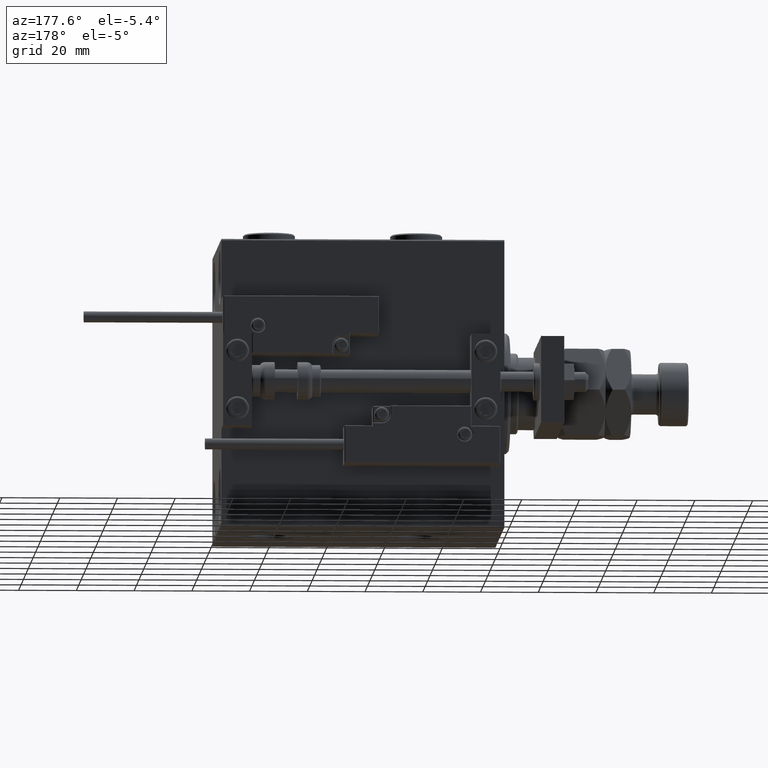
[diagram: clean part render]
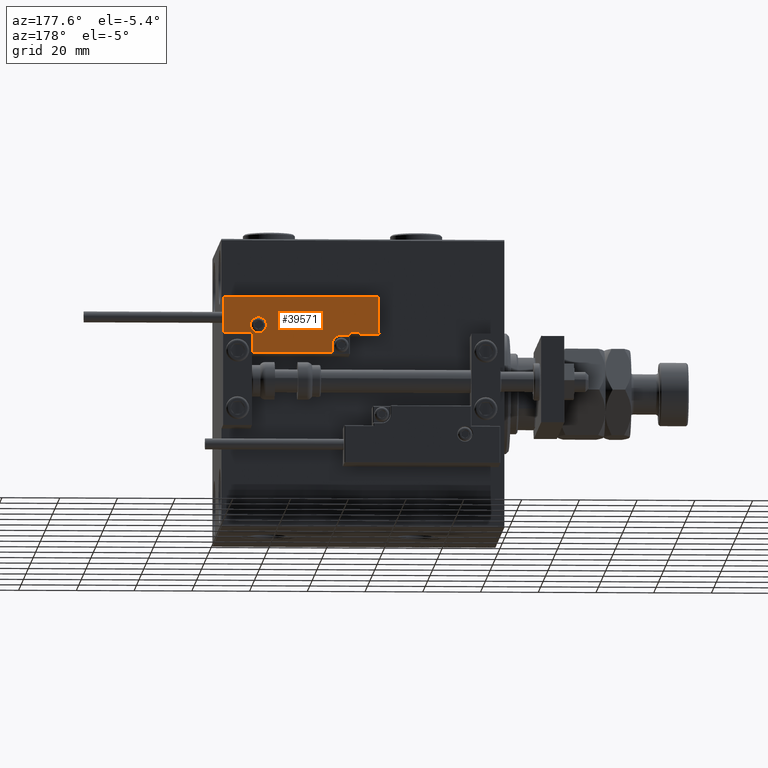
[diagram: same view with one face highlighted and labeled with its STEP entity id]
A machine part, auxiliary view. The second image highlights one B-rep face of the part: STEP entity #39571.
In plain terms, the highlighted planar face has unit normal (0, 1, -0).
Its self-contained STEP definition (entity closure, byte-faithful):
#631 = DIRECTION ( 'NONE',  ( 1.000000000000000000, 0.000000000000000000, 0.000000000000000000 ) ) ;
#680 = CARTESIAN_POINT ( 'NONE',  ( -11.99999999999994849, 9.800000000000004263, 14.00000000000000000 ) ) ;
#1669 = CARTESIAN_POINT ( 'NONE',  ( 10.69999999999999929, 3.000000000000003109, 14.00000000000000000 ) ) ;
#1866 = VERTEX_POINT ( 'NONE', #1669 ) ;
#2740 = CIRCLE ( 'NONE', #7013, 2.800000000000000266 ) ;
#2774 = DIRECTION ( 'NONE',  ( 1.000000000000000000, -1.734723475976815230E-16, 0.000000000000000000 ) ) ;
#2789 = VECTOR ( 'NONE', #10536, 1000.000000000000000 ) ;
#3572 = LINE ( 'NONE', #16253, #50113 ) ;
#4473 = ORIENTED_EDGE ( 'NONE', *, *, #48314, .T. ) ;
#4988 = VECTOR ( 'NONE', #32285, 1000.000000000000000 ) ;
#5203 = CARTESIAN_POINT ( 'NONE',  ( -14.79999999999994920, 9.800000000000004263, 14.00000000000000000 ) ) ;
#5204 = DIRECTION ( 'NONE',  ( 1.000000000000000000, 0.000000000000000000, 0.000000000000000000 ) ) ;
#5682 = DIRECTION ( 'NONE',  ( 0.000000000000000000, -0.000000000000000000, -1.000000000000000000 ) ) ;
#6308 = EDGE_CURVE ( 'NONE', #21961, #34755, #27029, .T. ) ;
#7013 = AXIS2_PLACEMENT_3D ( 'NONE', #25135, #5682, #50712 ) ;
#7266 = CARTESIAN_POINT ( 'NONE',  ( 26.70000000000006324, 19.70000000000001705, 14.00000000000000000 ) ) ;
#8036 = CARTESIAN_POINT ( 'NONE',  ( 16.69999999999999929, 6.300000000000003375, 14.00000000000000000 ) ) ;
#8128 = CIRCLE ( 'NONE', #21932, 3.299999999999997158 ) ;
#8203 = EDGE_CURVE ( 'NONE', #34755, #20968, #47510, .T. ) ;
#8355 = EDGE_CURVE ( 'NONE', #33851, #14526, #2740, .T. ) ;
#9189 = CARTESIAN_POINT ( 'NONE',  ( 11.00000000000000000, 0.3000000000000032085, 14.00000000000000000 ) ) ;
#9788 = VECTOR ( 'NONE', #38728, 1000.000000000000000 ) ;
#10382 = PLANE ( 'NONE',  #49442 ) ;
#10536 = DIRECTION ( 'NONE',  ( 1.000000000000000000, 5.782411586589357639E-16, -0.000000000000000000 ) ) ;
#10803 = CARTESIAN_POINT ( 'NONE',  ( 17.00000000000000000, 6.300000000000003375, 14.00000000000000000 ) ) ;
#10813 = CARTESIAN_POINT ( 'NONE',  ( 26.70000000000006324, 20.00000000000001776, 14.00000000000000000 ) ) ;
#11319 = AXIS2_PLACEMENT_3D ( 'NONE', #5203, #46465, #631 ) ;
#12041 = EDGE_CURVE ( 'NONE', #14526, #33851, #34590, .T. ) ;
#13084 = ORIENTED_EDGE ( 'NONE', *, *, #33061, .T. ) ;
#13241 = LINE ( 'NONE', #9189, #45053 ) ;
#13507 = DIRECTION ( 'NONE',  ( 1.000000000000000000, -0.000000000000000000, 0.000000000000000000 ) ) ;
#14526 = VERTEX_POINT ( 'NONE', #30143 ) ;
#15827 = ORIENTED_EDGE ( 'NONE', *, *, #31158, .T. ) ;
#16253 = CARTESIAN_POINT ( 'NONE',  ( -16.99999999999999289, 7.300000000000003375, 14.00000000000000000 ) ) ;
#17371 = LINE ( 'NONE', #18150, #29903 ) ;
#17390 = CARTESIAN_POINT ( 'NONE',  ( 16.69999999999999929, 7.300000000000009592, 14.00000000000000000 ) ) ;
#17708 = EDGE_CURVE ( 'NONE', #1866, #45497, #8128, .T. ) ;
#18150 = CARTESIAN_POINT ( 'NONE',  ( 10.69999999999999929, 3.000000000000003109, 14.00000000000000000 ) ) ;
#18478 = LINE ( 'NONE', #51376, #9788 ) ;
#18618 = ORIENTED_EDGE ( 'NONE', *, *, #8355, .T. ) ;
#20465 = VERTEX_POINT ( 'NONE', #21853 ) ;
#20737 = EDGE_LOOP ( 'NONE', ( #18618, #29552 ) ) ;
#20968 = VERTEX_POINT ( 'NONE', #24441 ) ;
#21853 = CARTESIAN_POINT ( 'NONE',  ( -16.69999999999999218, 0.3000000000000032085, 14.00000000000000000 ) ) ;
#21932 = AXIS2_PLACEMENT_3D ( 'NONE', #25739, #42159, #5204 ) ;
#21961 = VERTEX_POINT ( 'NONE', #50040 ) ;
#23227 = LINE ( 'NONE', #10803, #2789 ) ;
#23922 = CARTESIAN_POINT ( 'NONE',  ( 10.69999999999999929, 0.3000000000000032085, 14.00000000000000000 ) ) ;
#24218 = LINE ( 'NONE', #40670, #33224 ) ;
#24441 = CARTESIAN_POINT ( 'NONE',  ( -26.69999999999993534, 19.70000000000002061, 14.00000000000000000 ) ) ;
#25135 = CARTESIAN_POINT ( 'NONE',  ( -14.79999999999994920, 9.800000000000004263, 14.00000000000000000 ) ) ;
#25587 = CARTESIAN_POINT ( 'NONE',  ( 16.69999999999999929, 7.000000000000009770, 14.00000000000000000 ) ) ;
#25739 = CARTESIAN_POINT ( 'NONE',  ( 13.99999999999999822, 3.000000000000002665, 14.00000000000000000 ) ) ;
#26719 = EDGE_CURVE ( 'NONE', #49226, #1866, #17371, .T. ) ;
#26743 = ORIENTED_EDGE ( 'NONE', *, *, #43493, .T. ) ;
#27029 = LINE ( 'NONE', #10813, #30215 ) ;
#27295 = DIRECTION ( 'NONE',  ( 0.000000000000000000, 1.000000000000000000, -0.000000000000000000 ) ) ;
#27301 = DIRECTION ( 'NONE',  ( -1.000000000000000000, 6.424901762877063495E-17, -0.000000000000000000 ) ) ;
#27719 = ORIENTED_EDGE ( 'NONE', *, *, #33913, .T. ) ;
#28768 = LINE ( 'NONE', #48724, #4988 ) ;
#29552 = ORIENTED_EDGE ( 'NONE', *, *, #12041, .T. ) ;
#29903 = VECTOR ( 'NONE', #34095, 1000.000000000000000 ) ;
#30143 = CARTESIAN_POINT ( 'NONE',  ( -17.59999999999994813, 9.800000000000004263, 14.00000000000000000 ) ) ;
#30215 = VECTOR ( 'NONE', #27295, 1000.000000000000000 ) ;
#31158 = EDGE_CURVE ( 'NONE', #51639, #43968, #3572, .T. ) ;
#31187 = CARTESIAN_POINT ( 'NONE',  ( -26.69999999999994600, 7.300000000000005151, 14.00000000000000000 ) ) ;
#31435 = CARTESIAN_POINT ( 'NONE',  ( 0.000000000000000000, 0.000000000000000000, 14.00000000000000000 ) ) ;
#31634 = ORIENTED_EDGE ( 'NONE', *, *, #6308, .T. ) ;
#32015 = VECTOR ( 'NONE', #27301, 1000.000000000000000 ) ;
#32285 = DIRECTION ( 'NONE',  ( -8.006416042969869188E-16, -1.000000000000000000, 0.000000000000000000 ) ) ;
#33061 = EDGE_CURVE ( 'NONE', #45497, #51520, #23227, .T. ) ;
#33133 = DIRECTION ( 'NONE',  ( 9.912705577010318647E-16, 1.000000000000000000, 0.000000000000000000 ) ) ;
#33224 = VECTOR ( 'NONE', #40932, 1000.000000000000000 ) ;
#33636 = ORIENTED_EDGE ( 'NONE', *, *, #8203, .T. ) ;
#33851 = VERTEX_POINT ( 'NONE', #680 ) ;
#33913 = EDGE_CURVE ( 'NONE', #20465, #49226, #13241, .T. ) ;
#34095 = DIRECTION ( 'NONE',  ( -0.000000000000000000, 1.000000000000000000, -0.000000000000000000 ) ) ;
#34187 = LINE ( 'NONE', #25587, #39209 ) ;
#34590 = CIRCLE ( 'NONE', #11319, 2.800000000000000266 ) ;
#34755 = VERTEX_POINT ( 'NONE', #7266 ) ;
#35479 = FACE_BOUND ( 'NONE', #20737, .T. ) ;
#35651 = CARTESIAN_POINT ( 'NONE',  ( -26.99999999999993605, 19.70000000000002061, 14.00000000000000000 ) ) ;
#38728 = DIRECTION ( 'NONE',  ( 1.000000000000000000, -1.734723475976796001E-16, 0.000000000000000000 ) ) ;
#38766 = ORIENTED_EDGE ( 'NONE', *, *, #38876, .T. ) ;
#38818 = CARTESIAN_POINT ( 'NONE',  ( 13.99999999999999822, 6.300000000000001599, 14.00000000000000000 ) ) ;
#38876 = EDGE_CURVE ( 'NONE', #43752, #21961, #18478, .T. ) ;
#38999 = ORIENTED_EDGE ( 'NONE', *, *, #26719, .T. ) ;
#39005 = FACE_OUTER_BOUND ( 'NONE', #41194, .T. ) ;
#39209 = VECTOR ( 'NONE', #33133, 1000.000000000000000 ) ;
#39571 = ADVANCED_FACE ( 'NONE', ( #35479, #39005 ), #10382, .T. ) ;
#40670 = CARTESIAN_POINT ( 'NONE',  ( -16.69999999999999218, 3.252606517456513302E-15, 14.00000000000000000 ) ) ;
#40932 = DIRECTION ( 'NONE',  ( 0.000000000000000000, -1.000000000000000000, 0.000000000000000000 ) ) ;
#41194 = EDGE_LOOP ( 'NONE', ( #26743, #27719, #38999, #42402, #13084, #50480, #38766, #31634, #33636, #4473, #15827 ) ) ;
#41889 = EDGE_CURVE ( 'NONE', #51520, #43752, #34187, .T. ) ;
#42159 = DIRECTION ( 'NONE',  ( 0.000000000000000000, -0.000000000000000000, -1.000000000000000000 ) ) ;
#42402 = ORIENTED_EDGE ( 'NONE', *, *, #17708, .T. ) ;
#43493 = EDGE_CURVE ( 'NONE', #43968, #20465, #24218, .T. ) ;
#43752 = VERTEX_POINT ( 'NONE', #17390 ) ;
#43821 = DIRECTION ( 'NONE',  ( 1.000000000000000000, 0.000000000000000000, 0.000000000000000000 ) ) ;
#43968 = VERTEX_POINT ( 'NONE', #47819 ) ;
#45053 = VECTOR ( 'NONE', #13507, 1000.000000000000000 ) ;
#45497 = VERTEX_POINT ( 'NONE', #38818 ) ;
#46465 = DIRECTION ( 'NONE',  ( 0.000000000000000000, -0.000000000000000000, -1.000000000000000000 ) ) ;
#47510 = LINE ( 'NONE', #35651, #32015 ) ;
#47819 = CARTESIAN_POINT ( 'NONE',  ( -16.69999999999999218, 7.300000000000003375, 14.00000000000000000 ) ) ;
#48314 = EDGE_CURVE ( 'NONE', #20968, #51639, #28768, .T. ) ;
#48724 = CARTESIAN_POINT ( 'NONE',  ( -26.69999999999994600, 7.000000000000005329, 14.00000000000000000 ) ) ;
#49226 = VERTEX_POINT ( 'NONE', #23922 ) ;
#49442 = AXIS2_PLACEMENT_3D ( 'NONE', #31435, #51925, #43821 ) ;
#50040 = CARTESIAN_POINT ( 'NONE',  ( 26.70000000000006324, 7.300000000000007816, 14.00000000000000000 ) ) ;
#50113 = VECTOR ( 'NONE', #2774, 1000.000000000000000 ) ;
#50480 = ORIENTED_EDGE ( 'NONE', *, *, #41889, .T. ) ;
#50712 = DIRECTION ( 'NONE',  ( 1.000000000000000000, 0.000000000000000000, 0.000000000000000000 ) ) ;
#51376 = CARTESIAN_POINT ( 'NONE',  ( 27.00000000000006395, 7.300000000000007816, 14.00000000000000000 ) ) ;
#51520 = VERTEX_POINT ( 'NONE', #8036 ) ;
#51639 = VERTEX_POINT ( 'NONE', #31187 ) ;
#51925 = DIRECTION ( 'NONE',  ( -0.000000000000000000, 0.000000000000000000, 1.000000000000000000 ) ) ;